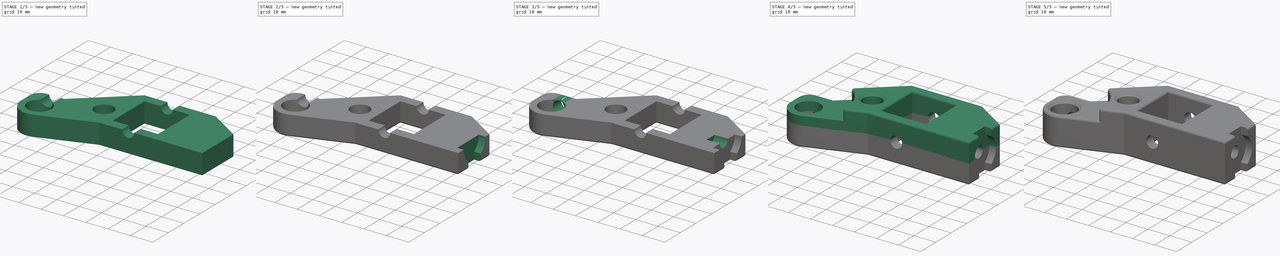
[diagram: build sequence overview — one tinted view per stage of 5, left to right]
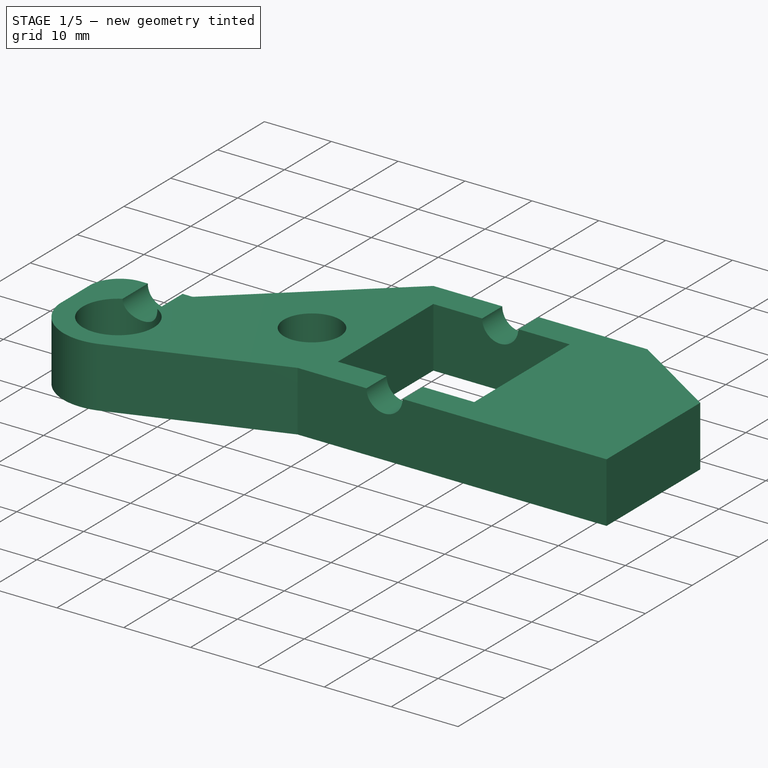
[diagram: stage 1 of 5 — iso view after this stage's code; geometry added in this stage tinted green]
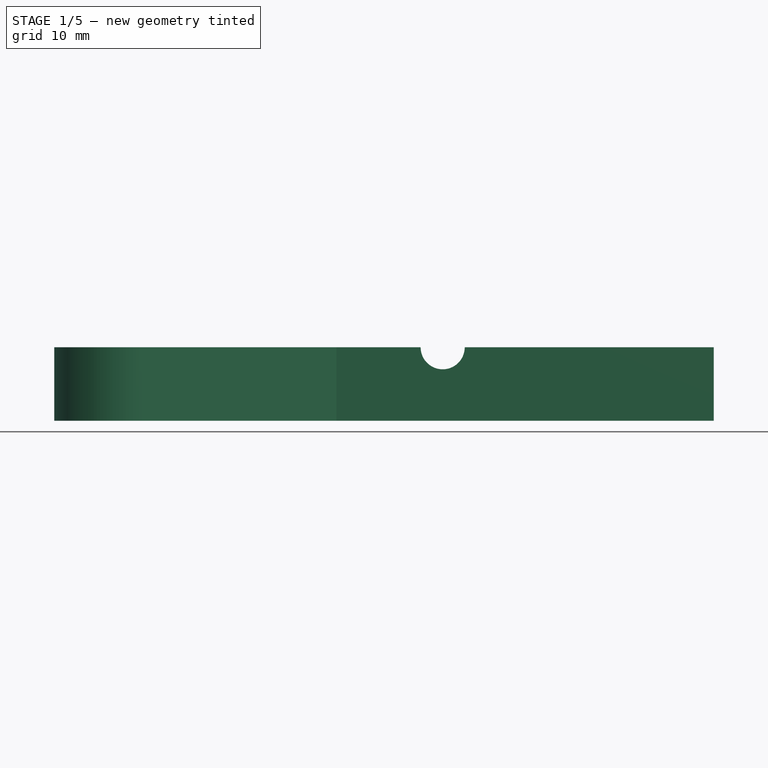
[diagram: stage 1 of 5 — front view after this stage's code; geometry added in this stage tinted green]
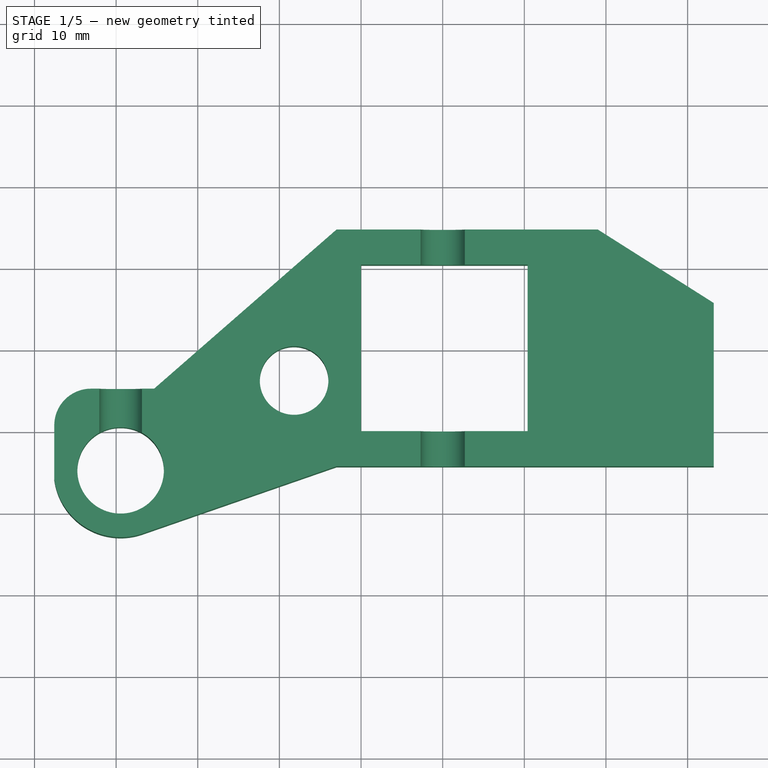
[diagram: stage 1 of 5 — top view after this stage's code; geometry added in this stage tinted green]
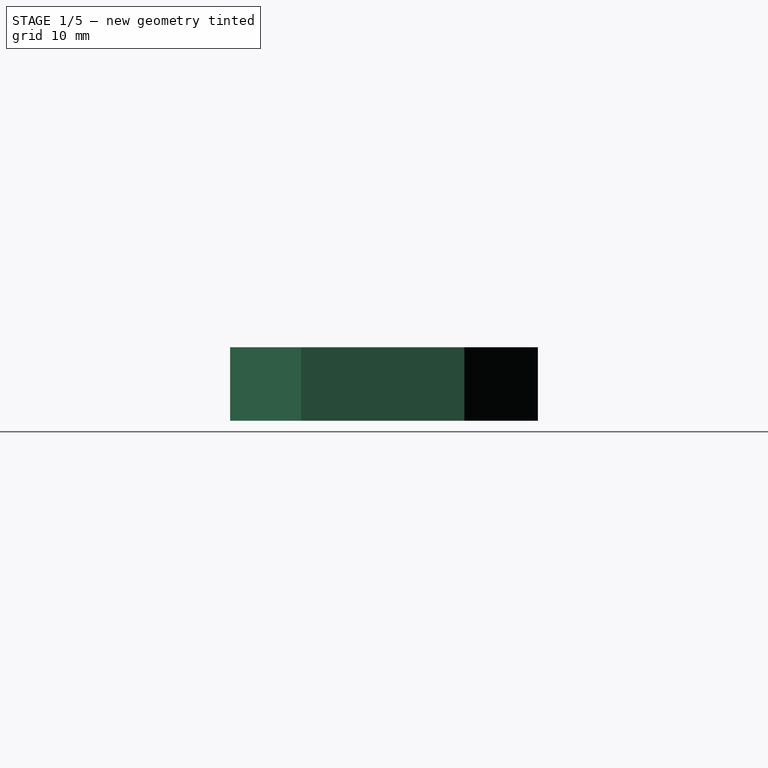
[diagram: stage 1 of 5 — right view after this stage's code; geometry added in this stage tinted green]
FCSTD DOCUMENT  (FreeCAD 0.16R6747 (Git))
Label: y_corner_v2.4
License: All rights reserved
LicenseURL: http://en.wikipedia.org/wiki/All_rights_reserved
objects: Drawing::FeatureViewPython×21, Sketcher::SketchObject×11, PartDesign::Pocket×8, PartDesign::Fillet×5, Drawing::FeatureViewPart×5, PartDesign::Pad×3, PartDesign::Chamfer×2, Part::Mirroring×1, Part::Feature×1, Part::MultiFuse×1, Drawing::FeaturePage×1
note: 43 computed .brp shape members not serialized (recipe doc carries the construction recipe); baked Part::Feature solids carry a one-line shape summary decoded from their .brp

FEATURE [Sketcher::SketchObject] Sketch
  sketch-geometry (21):
    g0: Circle CenterX=-8.2 CenterY=6.2 CenterZ=0 NormalX=0 NormalY=0 NormalZ=1 Radius=4.2
    g1: LineSegment StartX=0 StartY=20.4 StartZ=0 EndX=20.4 EndY=20.4 EndZ=0
    g2: LineSegment StartX=20.4 StartY=20.4 StartZ=0 EndX=20.4 EndY=0 EndZ=0
    g3: LineSegment StartX=20.4 StartY=0 StartZ=0 EndX=0 EndY=0 EndZ=0
    g4: LineSegment StartX=0 StartY=0 StartZ=0 EndX=0 EndY=20.4 EndZ=0
    g5: Circle CenterX=-29.45 CenterY=-4.8 CenterZ=0 NormalX=0 NormalY=0 NormalZ=1 Radius=5.3
    g6: LineSegment [constr] StartX=10.2 StartY=20.4 StartZ=0 EndX=10.2 EndY=0 EndZ=0
    g7: LineSegment [constr] StartX=0 StartY=10.2 StartZ=0 EndX=20.4 EndY=10.2 EndZ=0
    g8: LineSegment StartX=-3 StartY=24.7 StartZ=0 EndX=29 EndY=24.7 EndZ=0
    g9: LineSegment StartX=29 StartY=24.7 StartZ=0 EndX=43.2 EndY=15.7 EndZ=0
    g10: LineSegment StartX=43.2 StartY=15.7 StartZ=0 EndX=43.2 EndY=-4.3 EndZ=0
    g11: LineSegment StartX=43.2 StartY=-4.3 StartZ=0 EndX=-3 EndY=-4.3 EndZ=0
    g12: LineSegment StartX=-3 StartY=-4.3 StartZ=0 EndX=-26.8518 EndY=-12.5775 EndZ=0
    g13: LineSegment StartX=-3 StartY=24.7 StartZ=0 EndX=-25.35 EndY=5.2 EndZ=0
    g14: ArcOfCircle CenterX=-29.45 CenterY=-4.8 CenterZ=0 NormalX=0 NormalY=0 NormalZ=1 Radius=8.2 StartAngle=3.2757 EndAngle=5.03479
    g15: LineSegment [constr] StartX=0 StartY=44.345 StartZ=0 EndX=0 EndY=-16.0399 EndZ=0
    g16: LineSegment StartX=-37.5764 StartY=0.705065 StartZ=0 EndX=-37.5764 EndY=-5.89639 EndZ=0
    g17: LineSegment [constr] StartX=-29.45 StartY=18.3299 StartZ=0 EndX=-29.45 EndY=-20.2396 EndZ=0
    g18: LineSegment [constr] StartX=-42.4211 StartY=-4.8 StartZ=0 EndX=-17.1024 EndY=-4.8 EndZ=0
    g19: LineSegment StartX=-33.0814 StartY=5.2 StartZ=0 EndX=-25.35 EndY=5.2 EndZ=0
    g20: ArcOfCircle CenterX=-33.0814 CenterY=0.705065 CenterZ=0 NormalX=0 NormalY=0 NormalZ=1 Radius=4.49494 StartAngle=1.5708 EndAngle=3.14159
  constraints (56):
    c: Coincident(g1,g2)
    c: Coincident(g2,g3)
    c: Coincident(g3,g4)
    c: Coincident(g4,g1)
    c: Horizontal(g1)
    c: Horizontal(g3)
    c: Vertical(g2)
    c: Vertical(g4)
    c: DistanceX(g2,g3) = -20.4
    c: DistanceY(g2,g1) = 20.4
    c: Radius(g0) = 4.2
    c: Radius(g5) = 5.3
    c: PointOnObject(g6,g1)
    c: Vertical(g6)
    c: PointOnObject(g6,g3)
    c: DistanceX(g3,g6) = 10.2
    c: DistanceX(g0,g6) = 18.4
    c: PointOnObject(g7,g4)
    c: PointOnObject(g7,g2)
    c: Horizontal(g7)
    c: DistanceY(g3,g7) = 10.2
    c: DistanceY(g0,g7) = 4
    c: Coincident(g-1,g3)
    c: Horizontal(g8)
    c: Coincident(g8,g9)
    c: Coincident(g9,g10)
    c: Vertical(g10)
    c: Coincident(g10,g11)
    c: Horizontal(g11)
    c: Coincident(g11,g12)
    c: Coincident(g14,g5)
    c: Radius(g14) = 8.2
    c: DistanceX(g6,g10) = 33
    c: DistanceY(g-1,g11) = -4.3
    c: PointOnObject(g15,g-2)
    c: Vertical(g15)
    c: Coincident(g13,g8)
    c: DistanceY(g1,g8) = 4.3
    c: DistanceX(g-1,g11) = -3
    c: DistanceX(g1,g8) = -3
    c: DistanceY(g10) = -20
    c: DistanceX(g8) = 32
    c: Coincident(g14,g12)
    c: Vertical(g16)
    c: Vertical(g17)
    c: Horizontal(g18)
    c: PointOnObject(g5,g18)
    c: PointOnObject(g5,g17)
    c: Horizontal(g19)
    c: Coincident(g19,g13)
    c: Coincident(g16,g14)
    c: Tangent(g19,g20) = 1.5708
    c: Tangent(g16,g20) = -1.5708
    c: DistanceY(g5,g7) = 15
    c: DistanceX(g5,g6) = 39.65
    c: DistanceY(g5,g19) = 10
FEATURE [PartDesign::Pad] Pad
  Length = 9
  Length2 = 100
  Sketch = -> Sketch
  Type = 0
FEATURE [Sketcher::SketchObject] Sketch017
  Placement = pos=(0,5.2,0) rot=(0,0.707107,0.707107;3.14159rad)
  Support = -> Pad [Face9]
  sketch-geometry (1):
    g0: Circle CenterX=29.45 CenterY=9 CenterZ=0 NormalX=0 NormalY=0 NormalZ=1 Radius=2.6
  constraints (3):
    c: Radius(g0) = 2.6
    c: DistanceX(g-1,g0) = 29.45
    c: DistanceY(g-1,g0) = 9
FEATURE [PartDesign::Pocket] Pocket
  Length = 7
  Sketch = -> Sketch017
  Type = 0
FEATURE [Sketcher::SketchObject] Sketch018
  Placement = pos=(0,-4.3,0) rot=(1,0,0;1.5708rad)
  Support = -> Pocket [Face8]
  sketch-geometry (1):
    g0: Circle CenterX=10 CenterY=9 CenterZ=0 NormalX=0 NormalY=0 NormalZ=1 Radius=2.7
  constraints (3):
    c: Radius(g0) = 2.7
    c: DistanceX(g-1,g0) = 10
    c: DistanceY(g-1,g0) = 9
FEATURE [PartDesign::Pocket] Pocket001
  Length = 5
  Sketch = -> Sketch018
  Type = 1
FEATURE [PartDesign::Chamfer] Chamfer
  Base = -> Pocket001 [Edge21]
  Size = 1
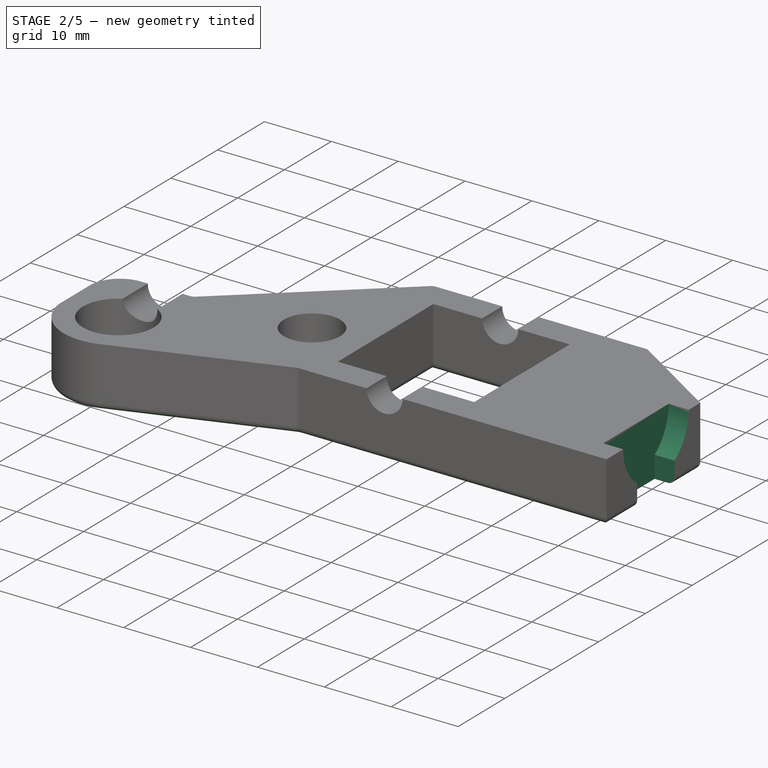
[diagram: stage 2 of 5 — iso view after this stage's code; geometry added in this stage tinted green]
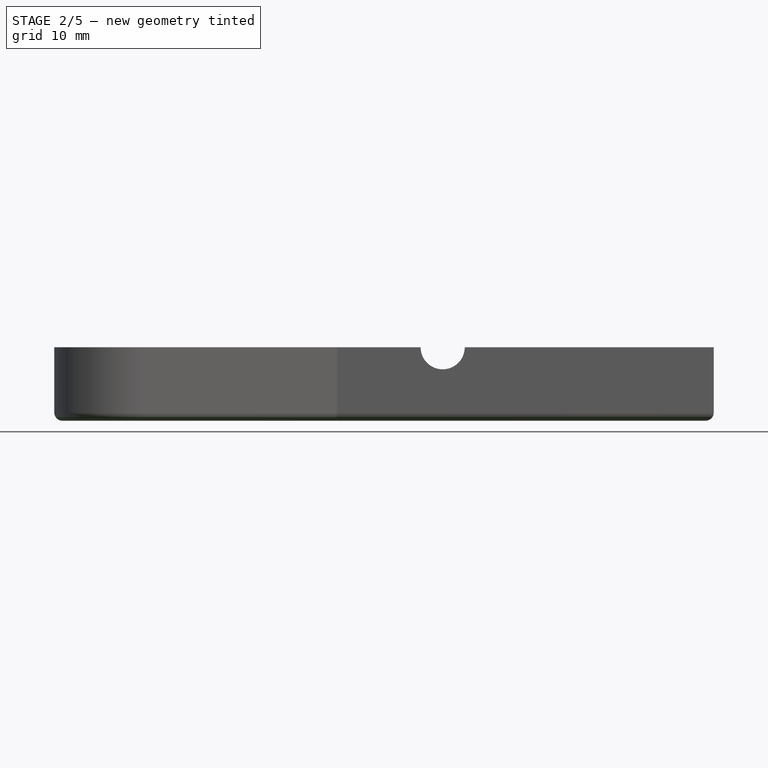
[diagram: stage 2 of 5 — front view after this stage's code; geometry added in this stage tinted green]
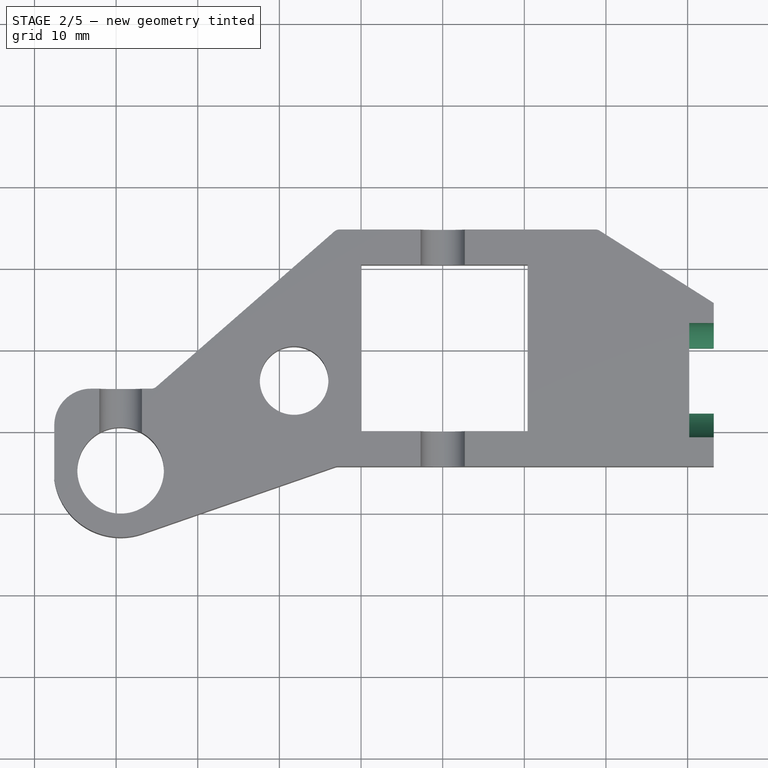
[diagram: stage 2 of 5 — top view after this stage's code; geometry added in this stage tinted green]
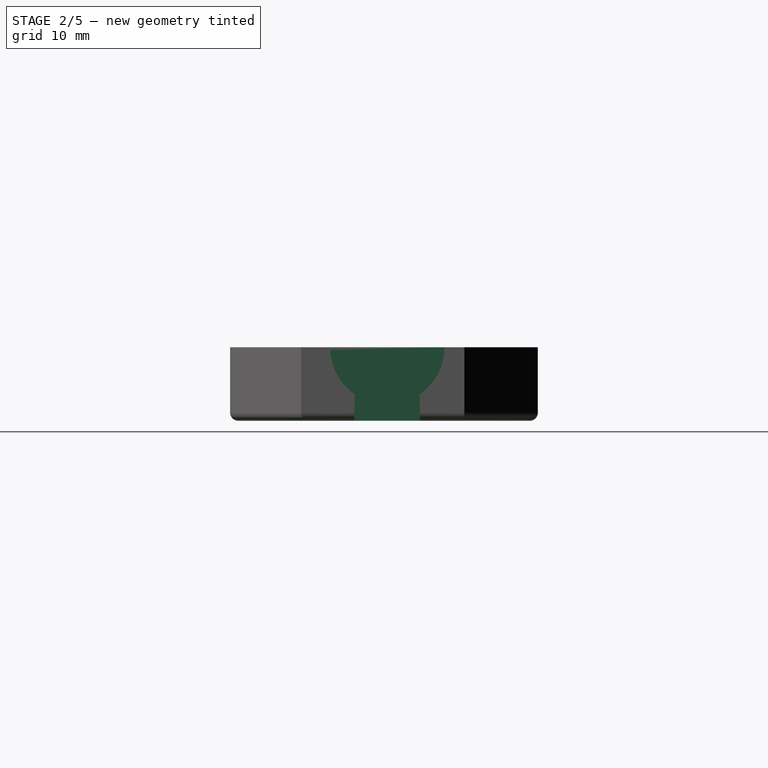
[diagram: stage 2 of 5 — right view after this stage's code; geometry added in this stage tinted green]
FEATURE [PartDesign::Fillet] Fillet
  Base = -> Chamfer [Edge15,Edge14,Edge13,Edge12]
  Radius = 1
FEATURE [PartDesign::Fillet] Fillet001
  Base = -> Fillet [Edge48,Edge31,Edge27,Edge36]
  Radius = 1
FEATURE [PartDesign::Fillet] Fillet002
  Base = -> Fillet001 [Edge5,Edge4,Edge12,Edge14,Edge9,Edge7]
  Radius = 1
FEATURE [Sketcher::SketchObject] Sketch019
  Placement = pos=(43.2,0,0) rot=(0.57735,0.57735,0.57735;2.0944rad)
  Support = -> Fillet002 [Face31]
  sketch-geometry (9):
    g0: LineSegment [constr] StartX=6.2 StartY=22.4432 StartZ=0 EndX=6.2 EndY=14.5 EndZ=0
    g1: ArcOfCircle CenterX=6.24799 CenterY=9 CenterZ=0 NormalX=0 NormalY=0 NormalZ=1 Radius=7 StartAngle=2.17904 EndAngle=4.10414
    g2: LineSegment StartX=2.24799 StartY=19 StartZ=0 EndX=2.24799 EndY=14.7446 EndZ=0
    g3: LineSegment StartX=10.248 StartY=3.25544 StartZ=0 EndX=10.248 EndY=-1 EndZ=0
    g4: LineSegment StartX=2.24799 StartY=19 StartZ=0 EndX=10.248 EndY=19 EndZ=0
    g5: LineSegment StartX=2.2 StartY=-1 StartZ=0 EndX=10.248 EndY=-1 EndZ=0
    g6: ArcOfCircle CenterX=6.24799 CenterY=9 CenterZ=0 NormalX=0 NormalY=0 NormalZ=1 Radius=7 StartAngle=5.32063 EndAngle=7.24574
    g7: LineSegment StartX=2.24799 StartY=3.25544 StartZ=0 EndX=2.2 EndY=-1 EndZ=0
    g8: LineSegment StartX=10.248 StartY=14.7446 StartZ=0 EndX=10.248 EndY=19 EndZ=0
  constraints (27):
    c: Vertical(g0)
    c: Radius(g1) = 7
    c: Vertical(g3)
    c: Vertical(g2)
    c: Coincident(g2,g4)
    c: Horizontal(g4)
    c: Coincident(g3,g5)
    c: Coincident(g7,g5)
    c: Horizontal(g5)
    c: DistanceX(g4,g1) = -4
    c: DistanceX(g1,g2) = -4
    c: Coincident(g6,g3)
    c: PointOnObject(g1,g2)
    c: Equal(g1,g6)
    c: PointOnObject(g1,g2)
    c: Coincident(g6,g3)
    c: Coincident(g1,g6)
    c: Coincident(g1,g7)
    c: Coincident(g1,g2)
    c: Vertical(g8)
    c: Coincident(g4,g8)
    c: Coincident(g6,g8)
    c: DistanceX(g1,g3) = 4
    c: DistanceY(g4,g1) = -10
    c: DistanceY(g3,g1) = 10
    c: DistanceY(g-1,g1) = 9
    c: DistanceX(g-1,g1) = 6.24799
FEATURE [PartDesign::Pocket] Pocket002
  Length = 3
  Sketch = -> Sketch019
  Type = 0
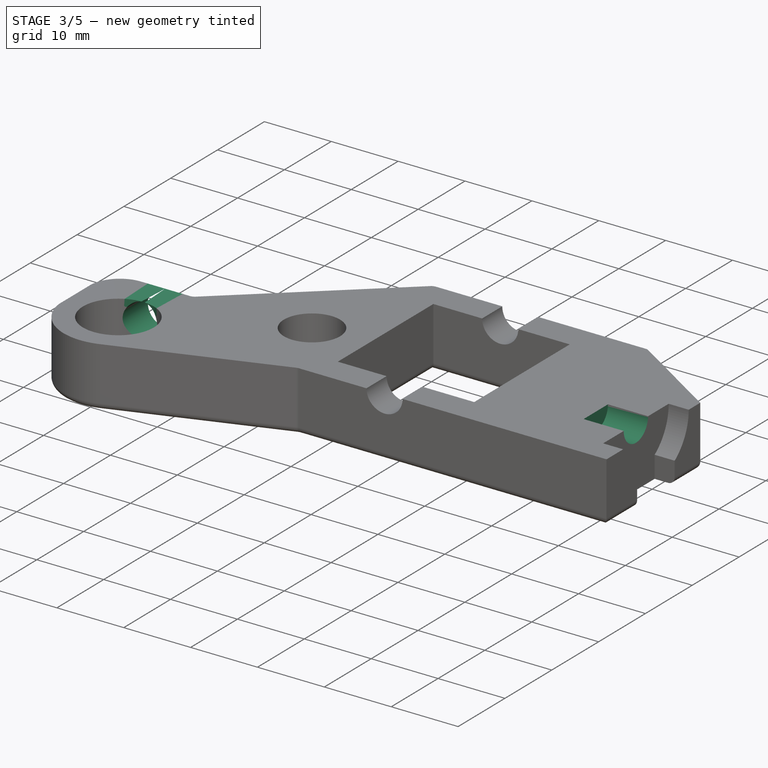
[diagram: stage 3 of 5 — iso view after this stage's code; geometry added in this stage tinted green]
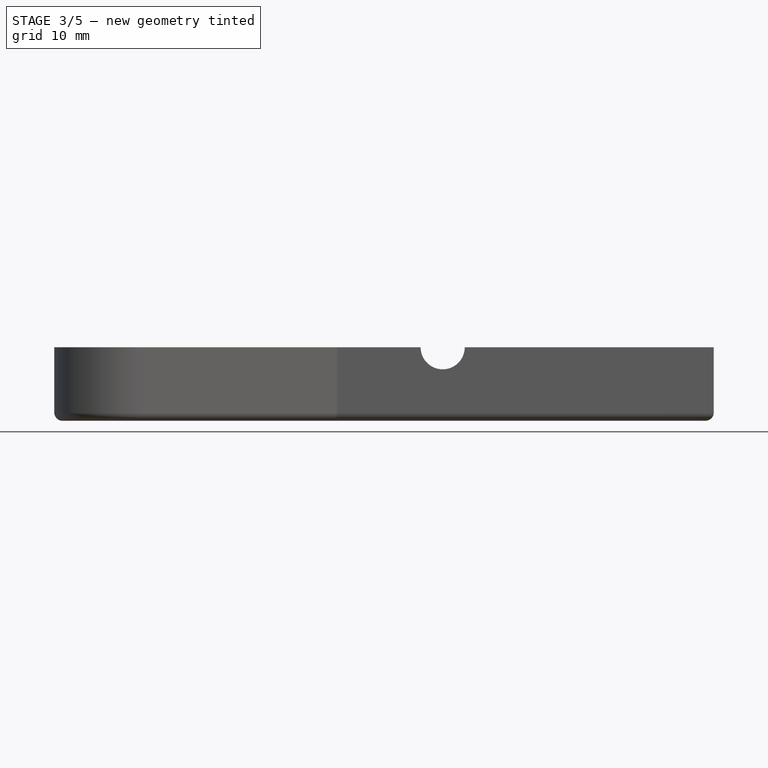
[diagram: stage 3 of 5 — front view after this stage's code; geometry added in this stage tinted green]
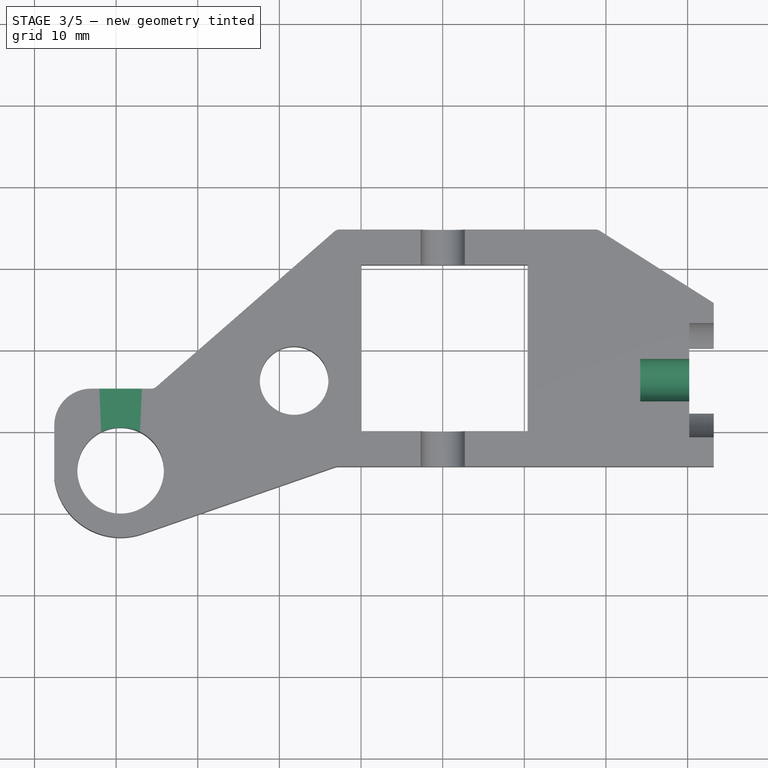
[diagram: stage 3 of 5 — top view after this stage's code; geometry added in this stage tinted green]
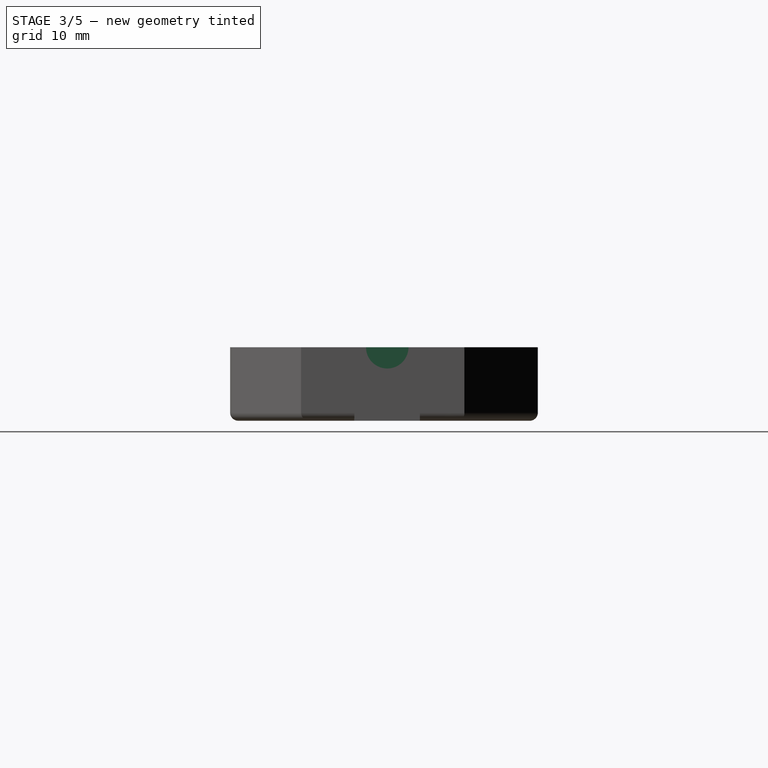
[diagram: stage 3 of 5 — right view after this stage's code; geometry added in this stage tinted green]
FEATURE [Sketcher::SketchObject] Sketch020
  ExternalGeometry = -> [Pocket002]
  Placement = pos=(40.2,0,0) rot=(0.57735,0.57735,0.57735;2.0944rad)
  Support = -> Pocket002 [Face11]
  sketch-geometry (1):
    g0: Circle CenterX=6.24799 CenterY=9 CenterZ=0 NormalX=0 NormalY=0 NormalZ=1 Radius=2.6
  constraints (2):
    c: Radius(g0) = 2.6
    c: Coincident(g0,g-3)
FEATURE [PartDesign::Pocket] Pocket003
  Length = 6
  Sketch = -> Sketch020
  Type = 0
FEATURE [Sketcher::SketchObject] Sketch022
  ExternalGeometry = -> [Pocket003]
  Placement = pos=(0,5.2,0) rot=(0,0.707107,0.707107;3.14159rad)
  Support = -> Pocket003 [Face27]
  sketch-geometry (2):
    g0: ArcOfCircle CenterX=29.45 CenterY=9 CenterZ=0 NormalX=0 NormalY=0 NormalZ=1 Radius=2.6 StartAngle=3.14159 EndAngle=6.28319
    g1: LineSegment StartX=26.85 StartY=9 StartZ=0 EndX=32.05 EndY=9 EndZ=0
  constraints (5):
    c: Coincident(g0,g-3)
    c: Coincident(g0,g-3)
    c: Coincident(g0,g-3)
    c: Coincident(g1,g0)
    c: Coincident(g1,g0)
FEATURE [PartDesign::Pad] Pad001
  Length = 10
  Length2 = 100
  Reversed = true
  Sketch = -> Sketch022
  Type = 0
FEATURE [Sketcher::SketchObject] Sketch025
  ExternalGeometry = -> [Pad001]
  Placement = pos=(0,0,0) rot=(1,0,0;3.14159rad)
  Support = -> Pad001 [Face1]
  sketch-geometry (1):
    g0: Circle CenterX=-29.45 CenterY=4.8 CenterZ=0 NormalX=0 NormalY=0 NormalZ=1 Radius=5.3
  constraints (2):
    c: Coincident(g0,g-3)
    c: Equal(g-3,g0)
FEATURE [PartDesign::Pocket] Pocket006
  Length = 5
  Sketch = -> Sketch025
  Type = 1
FEATURE [Sketcher::SketchObject] Sketch026
  ExternalGeometry = -> [Pocket006]
  Placement = pos=(0,5.2,0) rot=(0,0.707107,0.707107;3.14159rad)
  Support = -> Pocket006 [Face29]
  sketch-geometry (2):
    g0: Circle CenterX=29.45 CenterY=6.4 CenterZ=0 NormalX=0 NormalY=0 NormalZ=1 Radius=2.6
    g1: LineSegment [constr] StartX=29.45 StartY=6.4 StartZ=0 EndX=29.45 EndY=9 EndZ=0
  constraints (5):
    c: PointOnObject(g-3,g0)
    c: Equal(g-3,g0)
    c: Coincident(g1,g0)
    c: Coincident(g1,g-3)
    c: Vertical(g1)
FEATURE [PartDesign::Pocket] Pocket007
  Length = 10
  Sketch = -> Sketch026
  Type = 0
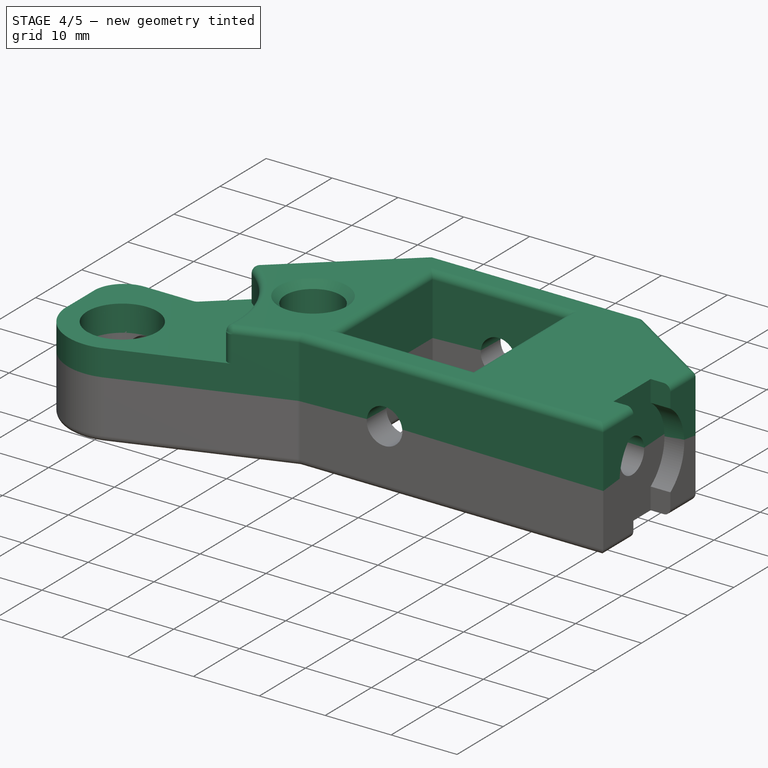
[diagram: stage 4 of 5 — iso view after this stage's code; geometry added in this stage tinted green]
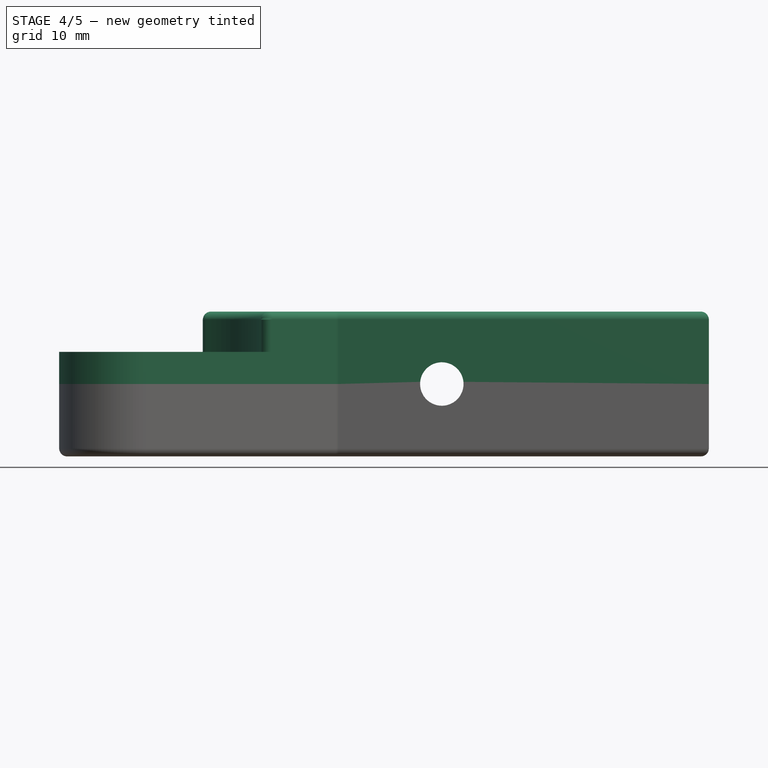
[diagram: stage 4 of 5 — front view after this stage's code; geometry added in this stage tinted green]
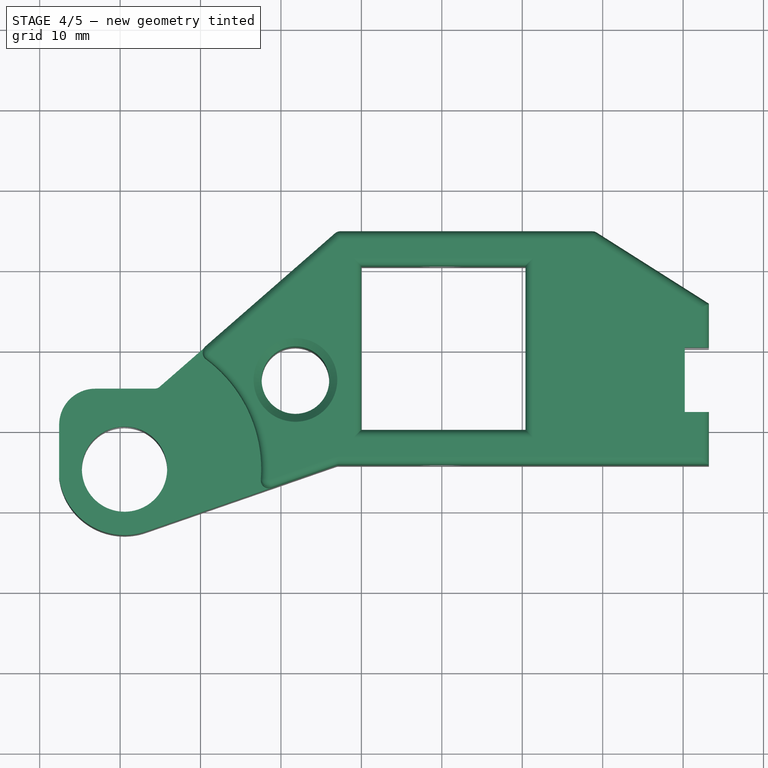
[diagram: stage 4 of 5 — top view after this stage's code; geometry added in this stage tinted green]
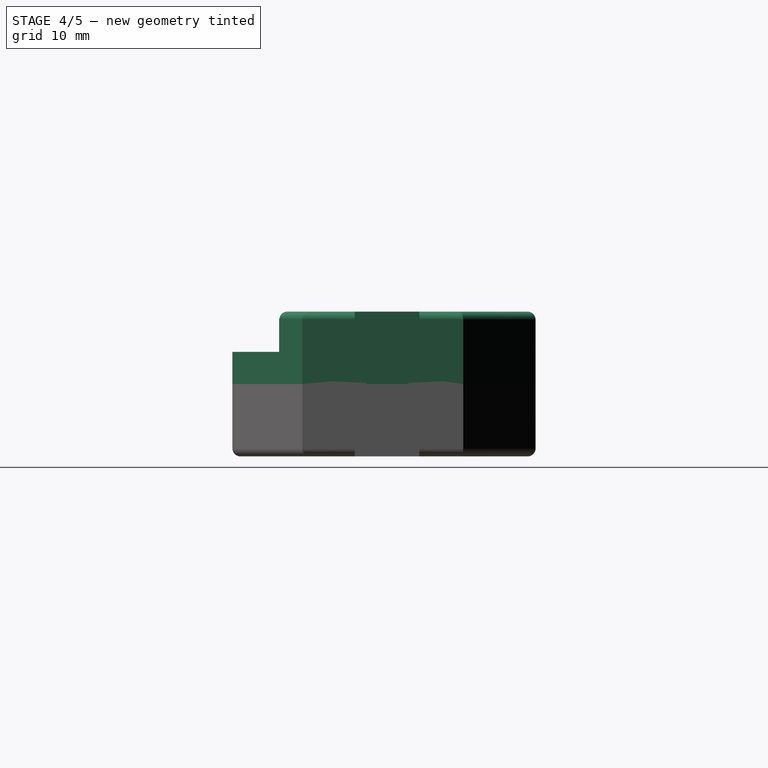
[diagram: stage 4 of 5 — right view after this stage's code; geometry added in this stage tinted green]
FEATURE [Part::Mirroring] Part__Mirroring  label="Pocket003 (Mirror #1)"
  Base = (0,0,9)
  Normal = (0,0,1)
  Source = -> Pocket003
FEATURE [Sketcher::SketchObject] Sketch021
  ExternalGeometry = -> [Part__Mirroring]
  Placement = pos=(0,0,18) rot=(0,0,1;0rad)
  Support = -> Part__Mirroring [Face1]
  sketch-geometry (1):
    g0: Circle CenterX=-29.45 CenterY=-4.8 CenterZ=0 NormalX=0 NormalY=0 NormalZ=1 Radius=17
  constraints (2):
    c: Coincident(g0,g-4)
    c: Radius(g0) = 17
FEATURE [PartDesign::Pocket] Pocket004
  Length = 5
  Sketch = -> Sketch021
  Type = 0
FEATURE [PartDesign::Fillet] Fillet003
  Base = -> Pocket004 [Edge2]
  Radius = 1
FEATURE [Part::Feature] Chamfer001001  label="Chamfer002"
  shape: bbox 81.45 x 38.3 x 9.006 mm, 65 faces (baked)
FEATURE [Part::MultiFuse] Fusion
  Shapes = -> [Pocket007,Chamfer001001]
FEATURE [Drawing::FeatureViewPart] Ortho  label="Ortho_0_0"
  Direction = (0,0,-1)
  HiddenWidth = 0.15
  LineWidth = 0.35
  Rotation = -90
  Scale = 1.5
  ShowHiddenLines = false
  ShowSmoothLines = true
  Source = -> Fusion
  Tolerance = 0.05
  ViewResult = <blob: 11219 chars omitted>
  Visible = true
  X = 183.026
  Y = 144.282
FEATURE [Drawing::FeatureViewPart] Ortho001  label="Ortho_-1_0"
  Direction = (0,1,0)
  HiddenWidth = 0.15
  LineWidth = 0.35
  Rotation = 180
  Scale = 1.5
  ShowHiddenLines = false
  ShowSmoothLines = true
  Source = -> Fusion
  Tolerance = 0.05
  ViewResult = <blob: 15483 chars omitted>
  Visible = true
  X = 128.5
  Y = 144.282
FEATURE [Drawing::FeatureViewPart] Ortho002  label="Ortho_-2_0"
  Direction = (0,0,1)
  HiddenWidth = 0.15
  LineWidth = 0.35
  Rotation = 90
  Scale = 1.5
  ShowHiddenLines = false
  ShowSmoothLines = true
  Source = -> Fusion
  Tolerance = 0.05
  ViewResult = <blob: 14001 chars omitted>
  Visible = true
  X = 46.9742
  Y = 144.282
FEATURE [Drawing::FeatureViewPart] Ortho003  label="Ortho_0_1"
  Direction = (-1,0,0)
  HiddenWidth = 0.15
  LineWidth = 0.35
  Rotation = 90
  Scale = 1.5
  ShowHiddenLines = false
  ShowSmoothLines = true
  Source = -> Fusion
  Tolerance = 0.05
  ViewResult = <blob: 12785 chars omitted>
  Visible = true
  X = 183.026
  Y = 62.4589
FEATURE [Drawing::FeatureViewPart] Ortho004  label="Ortho_0_-1"
  Direction = (1,0,0)
  HiddenWidth = 0.15
  LineWidth = 0.35
  Rotation = 90
  Scale = 1.5
  ShowHiddenLines = false
  ShowSmoothLines = true
  Source = -> Fusion
  Tolerance = 0.05
  ViewResult = <blob: 11157 chars omitted>
  Visible = true
  X = 183.026
  Y = 234.541
FEATURE [Drawing::FeatureViewPython] text002  # drawing view (typed FeaturePython)
  Rotation = 0
  ViewResult = <g> <text x="83.528981" y="79.427111" font-family="inherit" font-size="5" fill="rgb(0,0,0)" text-anchor="inherit" transform="rotate(0.000000 83.528981,79.427111)" >'A'</text> </g>
  Visible = true
  X = 0
  Y = 0
  click1_x = 83.529
  click1_y = 79.4271
  rotation = 0
  text = 'A'
  textRenderer_addText_color = rgb(0,0,0)
  textRenderer_addText_family = inherit
  textRenderer_addText_size = 5
FEATURE [Drawing::FeatureViewPython] text003  # drawing view (typed FeaturePython)
  Rotation = 0
  ViewResult = <g> <text x="149.904688" y="100.309356" font-family="inherit" font-size="5" fill="rgb(0,0,0)" text-anchor="inherit" transform="rotate(0.000000 149.904688,100.309356)" >'A'</text> </g>
  Visible = true
  X = 0
  Y = 0
  click1_x = 149.905
  click1_y = 100.309
  rotation = 0
  text = 'A'
  textRenderer_addText_color = rgb(0,0,0)
  textRenderer_addText_family = inherit
  textRenderer_addText_size = 5
FEATURE [Drawing::FeatureViewPython] text004  # drawing view (typed FeaturePython)
  Rotation = 0
  ViewResult = <g> <text x="187.940206" y="222.619649" font-family="inherit" font-size="5" fill="rgb(0,0,0)" text-anchor="inherit" transform="rotate(0.000000 187.940206,222.619649)" >'D'</text> </g>
  Visible = true
  X = 0
  Y = 0
  click1_x = 187.94
  click1_y = 222.62
  rotation = 0
  text = 'D'
  textRenderer_addText_color = rgb(0,0,0)
  textRenderer_addText_family = inherit
  textRenderer_addText_size = 5
FEATURE [Drawing::FeatureViewPython] text005  # drawing view (typed FeaturePython)
  Rotation = 0
  ViewResult = <g> <text x="142.073846" y="224.484135" font-family="inherit" font-size="5" fill="rgb(0,0,0)" text-anchor="inherit" transform="rotate(0.000000 142.073846,224.484135)" >'C'</text> </g>
  Visible = true
  X = 0
  Y = 0
  click1_x = 142.074
  click1_y = 224.484
  rotation = 0
  text = 'C'
  textRenderer_addText_color = rgb(0,0,0)
  textRenderer_addText_family = inherit
  textRenderer_addText_size = 5
FEATURE [Drawing::FeatureViewPython] text006  # drawing view (typed FeaturePython)
  Rotation = 0
  ViewResult = <g> <text x="196.889740" y="76.071036" font-family="inherit" font-size="5" fill="rgb(0,0,0)" text-anchor="inherit" transform="rotate(0.000000 196.889740,76.071036)" >'A'</text> </g>
  Visible = true
  X = 0
  Y = 0
  click1_x = 196.89
  click1_y = 76.071
  rotation = 0
  text = 'A'
  textRenderer_addText_color = rgb(0,0,0)
  textRenderer_addText_family = inherit
  textRenderer_addText_size = 5
FEATURE [Drawing::FeatureViewPython] grabPoint001  # drawing view (typed FeaturePython)
  Rotation = 0
  ViewResult = <g> <line x1="48.8495377348" y1="114.106553793" x2="48.8495377348" y2="114.106553793" style="stroke:rgb(0,0,0);stroke-width:0.01" /> </g> 
  Visible = true
  X = 0
  Y = 0
  click1_x = 48.8495
  click1_y = 114.107
FEATURE [Drawing::FeatureViewPython] grabPoint002  # drawing view (typed FeaturePython)
  Rotation = 0
  ViewResult = <g> <line x1="66.7486049964" y1="136.107490635" x2="66.7486049964" y2="136.107490635" style="stroke:rgb(0,0,0);stroke-width:0.01" /> </g> 
  Visible = true
  X = 0
  Y = 0
  click1_x = 66.7486
  click1_y = 136.107
FEATURE [Drawing::FeatureViewPython] grabPoint003  # drawing view (typed FeaturePython)
  Rotation = 0
  ViewResult = <g> <line x1="110.377581447" y1="122.683190189" x2="110.377581447" y2="122.683190189" style="stroke:rgb(0,0,0);stroke-width:0.01" /> </g> 
  Visible = true
  X = 0
  Y = 0
  click1_x = 110.378
  click1_y = 122.683
FEATURE [Drawing::FeatureViewPython] grabPoint004  # drawing view (typed FeaturePython)
  Rotation = 0
  ViewResult = <g> <line x1="163.701885997" y1="54.0700990194" x2="163.701885997" y2="54.0700990194" style="stroke:rgb(0,0,0);stroke-width:0.01" /> </g> 
  Visible = true
  X = 0
  Y = 0
  click1_x = 163.702
  click1_y = 54.0701
FEATURE [Drawing::FeatureViewPython] grabPoint005  # drawing view (typed FeaturePython)
  Rotation = 0
  ViewResult = <g> <line x1="181.228056024" y1="118.208423374" x2="181.228056024" y2="118.208423374" style="stroke:rgb(0,0,0);stroke-width:0.01" /> </g> 
  Visible = true
  X = 0
  Y = 0
  click1_x = 181.228
  click1_y = 118.208
FEATURE [Drawing::FeatureViewPython] grabPoint006  # drawing view (typed FeaturePython)
  Rotation = 0
  ViewResult = <g> <line x1="152.142071724" y1="243.12899697" x2="152.142071724" y2="243.12899697" style="stroke:rgb(0,0,0);stroke-width:0.01" /> </g> 
  Visible = true
  X = 0
  Y = 0
  click1_x = 152.142
  click1_y = 243.129
FEATURE [Drawing::FeatureViewPython] grabPoint007  # drawing view (typed FeaturePython)
  Rotation = 0
  ViewResult = <g> <line x1="173.770111331" y1="238.654230155" x2="173.770111331" y2="238.654230155" style="stroke:rgb(0,0,0);stroke-width:0.01" /> </g> 
  Visible = true
  X = 0
  Y = 0
  click1_x = 173.77
  click1_y = 238.654
FEATURE [Drawing::FeatureViewPython] weld001  # drawing view (typed FeaturePython)
  Rotation = 0
  ViewResult = <g   >\n<line x1="184.305800" y1="223.851934" x2="173.770111" y2="238.654230" style="stroke:rgb(0,0,255);stroke-width:0.50" />\n<polygon points="173.770111,238.654230 176.324442,236.789989 176.089612,235.395408 174.695031,235.630239" style="fill:rgb(0,0,255);stroke:rgb(0,0,255);stroke-width:0" />\n<line x1="184.305800" y1="223.851934" x2="198.771359" y2="223.851934" style="stroke:rgb(0,0,255);stroke-width:0.50" />\n</g> 
  Visible = true
  X = 0
  Y = 0
  arrowL1 = 3
  arrowL2 = 1
  arrowW = 2
  click1_x = 184.306
  click1_y = 223.852
  click2_x = 198.771
  click2_y = 223.956
  lineColor = rgb(0,0,255)
  strokeWidth = 0.5
  textRenderer_color = rgb(0,0,255)
  textRenderer_family = inherit
  textRenderer_size = 3.6
FEATURE [Drawing::FeatureViewPython] weld002  # drawing view (typed FeaturePython)
  Rotation = 0
  ViewResult = <g   >\n<line x1="150.483448" y1="226.245516" x2="152.142072" y2="243.128997" style="stroke:rgb(0,0,255);stroke-width:0.50" />\n<polygon points="152.142072,243.128997 152.843974,240.045601 151.750997,239.148160 150.853556,240.241138" style="fill:rgb(0,0,255);stroke:rgb(0,0,255);stroke-width:0" />\n<line x1="150.483448" y1="226.245516" x2="139.972502" y2="226.245516" style="stroke:rgb(0,0,255);stroke-width:0.50" />\n</g> 
  Visible = true
  X = 0
  Y = 0
  arrowL1 = 3
  arrowL2 = 1
  arrowW = 2
  click1_x = 150.483
  click1_y = 226.246
  click2_x = 139.973
  click2_y = 223.956
  lineColor = rgb(0,0,255)
  strokeWidth = 0.5
  textRenderer_color = rgb(0,0,255)
  textRenderer_family = inherit
  textRenderer_size = 3.6
FEATURE [Drawing::FeatureViewPython] weld003  # drawing view (typed FeaturePython)
  Rotation = 0
  ViewResult = <g   >\n<line x1="66.379374" y1="100.420078" x2="48.849538" y2="114.106554" style="stroke:rgb(0,0,255);stroke-width:0.50" />\n<polygon points="48.849538,114.106554 51.829582,113.048566 52.002395,111.644950 50.598780,111.472137" style="fill:rgb(0,0,255);stroke:rgb(0,0,255);stroke-width:0" />\n<line x1="66.379374" y1="100.420078" x2="78.974434" y2="100.420078" style="stroke:rgb(0,0,255);stroke-width:0.50" />\n</g> 
  Visible = true
  X = 0
  Y = 0
  arrowL1 = 3
  arrowL2 = 1
  arrowW = 2
  click1_x = 66.3794
  click1_y = 100.42
  click2_x = 78.9744
  click2_y = 100.42
  lineColor = rgb(0,0,255)
  strokeWidth = 0.5
  textRenderer_color = rgb(0,0,255)
  textRenderer_family = inherit
  textRenderer_size = 3.6
FEATURE [Drawing::FeatureViewPython] weld004  # drawing view (typed FeaturePython)
  Rotation = 0
  ViewResult = <g   >\n<line x1="66.038967" y1="100.420078" x2="66.748605" y2="136.107491" style="stroke:rgb(0,0,255);stroke-width:0.50" />\n<polygon points="66.748605,136.107491 67.688765,133.088203 66.669081,132.108281 65.689160,133.127964" style="fill:rgb(0,0,255);stroke:rgb(0,0,255);stroke-width:0" />\n<line x1="66.038967" y1="100.420078" x2="66.719781" y2="100.420078" style="stroke:rgb(0,0,255);stroke-width:0.50" />\n</g> 
  Visible = true
  X = 0
  Y = 0
  arrowL1 = 3
  arrowL2 = 1
  arrowW = 2
  click1_x = 66.039
  click1_y = 100.42
  click2_x = 66.7198
  click2_y = 99.7393
  lineColor = rgb(0,0,255)
  strokeWidth = 0.5
  textRenderer_color = rgb(0,0,255)
  textRenderer_family = inherit
  textRenderer_size = 3.6
FEATURE [Drawing::FeatureViewPython] weld005  # drawing view (typed FeaturePython)
  Rotation = 0
  ViewResult = <g   >\n<line x1="94.530152" y1="81.397164" x2="110.377581" y2="122.683190" style="stroke:rgb(0,0,255);stroke-width:0.50" />\n<polygon points="110.377581,122.683190 110.236111,119.524079 108.944172,118.948845 108.368938,120.240783" style="fill:rgb(0,0,255);stroke:rgb(0,0,255);stroke-width:0" />\n<line x1="94.530152" y1="81.397164" x2="78.661125" y2="81.397164" style="stroke:rgb(0,0,255);stroke-width:0.50" />\n</g> 
  Visible = true
  X = 0
  Y = 0
  arrowL1 = 3
  arrowL2 = 1
  arrowW = 2
  click1_x = 94.5302
  click1_y = 81.3972
  click2_x = 78.6611
  click2_y = 79.6187
  lineColor = rgb(0,0,255)
  strokeWidth = 0.5
  textRenderer_color = rgb(0,0,255)
  textRenderer_family = inherit
  textRenderer_size = 3.6
FEATURE [Drawing::FeatureViewPython] weld006  # drawing view (typed FeaturePython)
  Rotation = 0
  ViewResult = <g   >\n<line x1="162.383923" y1="101.917458" x2="181.228056" y2="118.208423" style="stroke:rgb(0,0,255);stroke-width:0.50" />\n<polygon points="181.228056,118.208423 179.612568,115.489931 178.202074,115.592428 178.304571,117.002922" style="fill:rgb(0,0,255);stroke:rgb(0,0,255);stroke-width:0" />\n<line x1="162.383923" y1="101.917458" x2="143.915659" y2="101.917458" style="stroke:rgb(0,0,255);stroke-width:0.50" />\n</g> 
  Visible = true
  X = 0
  Y = 0
  arrowL1 = 3
  arrowL2 = 1
  arrowW = 2
  click1_x = 162.384
  click1_y = 101.917
  click2_x = 143.916
  click2_y = 101.233
  lineColor = rgb(0,0,255)
  strokeWidth = 0.5
  textRenderer_color = rgb(0,0,255)
  textRenderer_family = inherit
  textRenderer_size = 3.6
FEATURE [Drawing::FeatureViewPython] weld007  # drawing view (typed FeaturePython)
  Rotation = 0
  ViewResult = <g   >\n<line x1="194.204058" y1="78.141278" x2="163.701886" y2="54.070099" style="stroke:rgb(0,0,255);stroke-width:0.50" />\n<polygon points="163.701886,54.070099 165.437396,56.713582 166.841892,56.548075 166.676384,55.143579" style="fill:rgb(0,0,255);stroke:rgb(0,0,255);stroke-width:0" />\n<line x1="194.204058" y1="78.141278" x2="206.516234" y2="78.141278" style="stroke:rgb(0,0,255);stroke-width:0.50" />\n</g> 
  Visible = true
  X = 0
  Y = 0
  arrowL1 = 3
  arrowL2 = 1
  arrowW = 2
  click1_x = 194.204
  click1_y = 78.1413
  click2_x = 206.516
  click2_y = 79.6187
  lineColor = rgb(0,0,255)
  strokeWidth = 0.5
  textRenderer_color = rgb(0,0,255)
  textRenderer_family = inherit
  textRenderer_size = 3.6
FEATURE [Drawing::FeatureViewPython] text007  # drawing view (typed FeaturePython)
  Rotation = 0
  ViewResult = <g> <text x="92.478514" y="79.427111" font-family="inherit" font-size="5" fill="rgb(0,0,0)" text-anchor="inherit" transform="rotate(0.000000 92.478514,79.427111)" >ALL AROUND </text> </g>
  Visible = true
  X = 0
  Y = 0
  click1_x = 92.4785
  click1_y = 79.4271
  rotation = 0
  text = ALL AROUND 
  textRenderer_addText_color = rgb(0,0,0)
  textRenderer_addText_family = inherit
  textRenderer_addText_size = 5
FEATURE [Drawing::FeatureViewPython] text008  # drawing view (typed FeaturePython)
  Rotation = 0
  ViewResult = <g> <text x="70.253839" y="98.444870" font-family="inherit" font-size="5" fill="rgb(0,0,0)" text-anchor="inherit" transform="rotate(0.000000 70.253839,98.444870)" >'B'</text> </g>
  Visible = true
  X = 0
  Y = 0
  click1_x = 70.2538
  click1_y = 98.4449
  rotation = 0
  text = 'B'
  textRenderer_addText_color = rgb(0,0,0)
  textRenderer_addText_family = inherit
  textRenderer_addText_size = 5
FEATURE [Drawing::FeaturePage] Page
  EditableTexts = AUTHOR NAME | CREATION DATE | SUPERVISOR NAME | CHECK DATE | SCALE | WEIGHT | NUMBER | SHEET | TITLE | SUBTITLE
  Group = -> [Ortho,Ortho001,Ortho002,Ortho003,Ortho004,text002,text003,text004,text005,text006,grabPoint001,grabPoint002,grabPoint003,grabPoint004,grabPoint005,grabPoint006,grabPoint007,weld001,weld002,weld003,weld004,weld005,weld006,weld007,text007,text008]
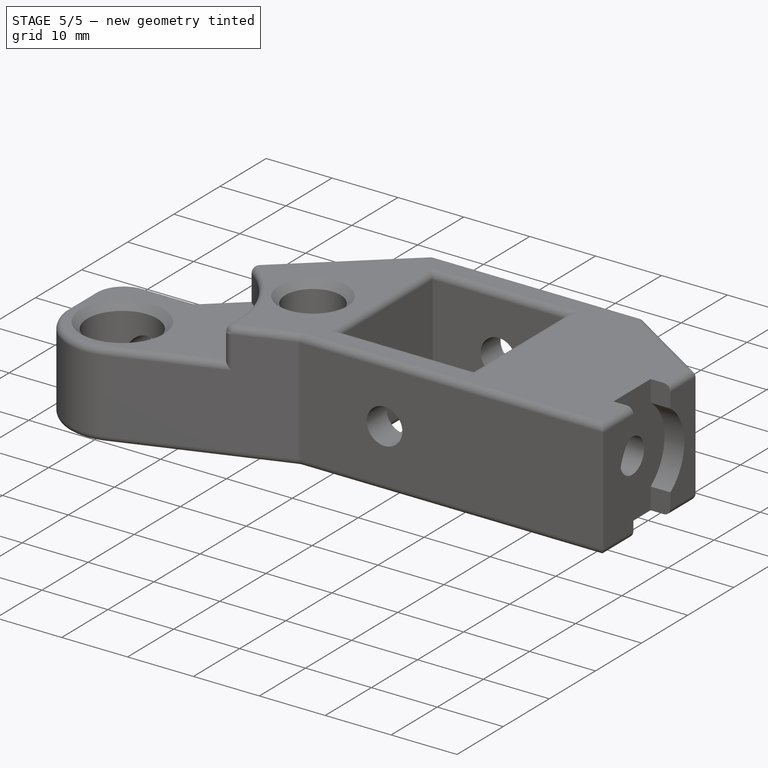
[diagram: stage 5 of 5 — iso view after this stage's code; geometry added in this stage tinted green]
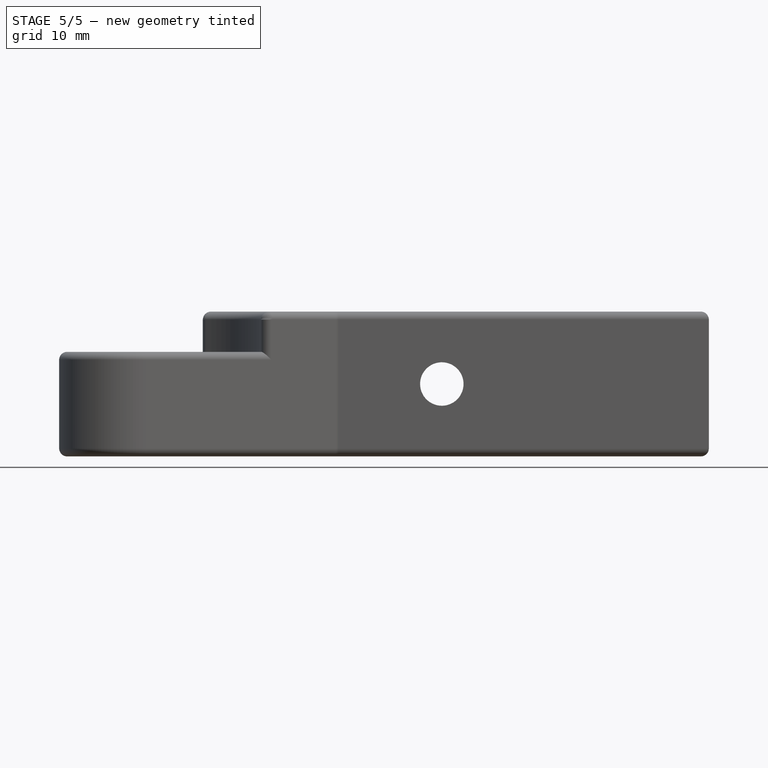
[diagram: stage 5 of 5 — front view after this stage's code; geometry added in this stage tinted green]
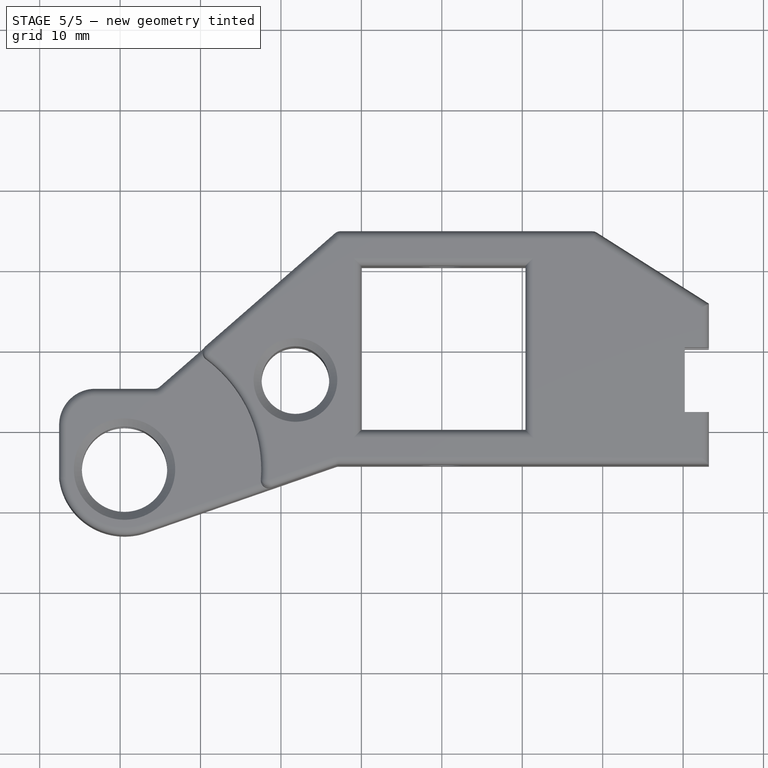
[diagram: stage 5 of 5 — top view after this stage's code; geometry added in this stage tinted green]
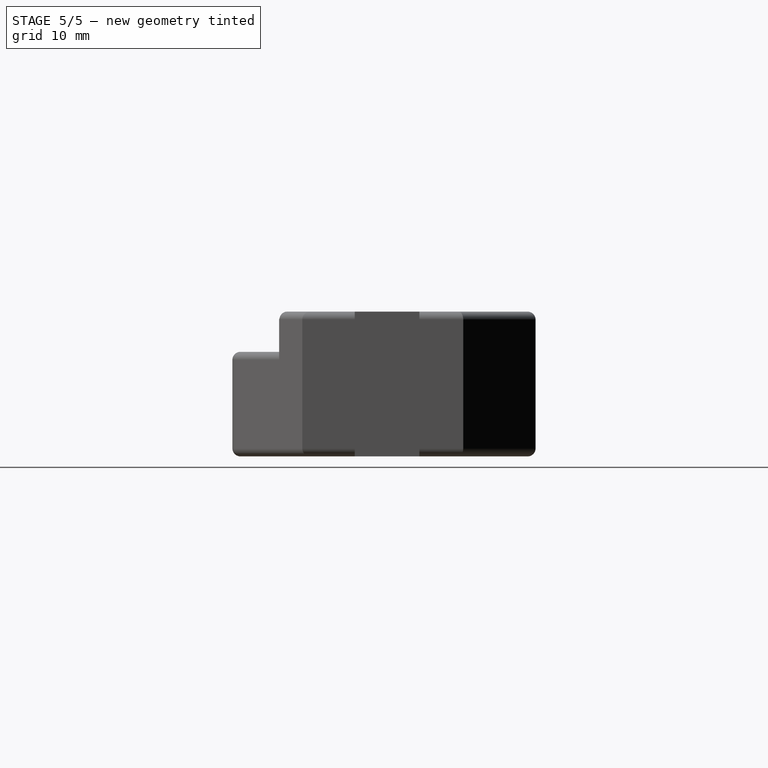
[diagram: stage 5 of 5 — right view after this stage's code; geometry added in this stage tinted green]
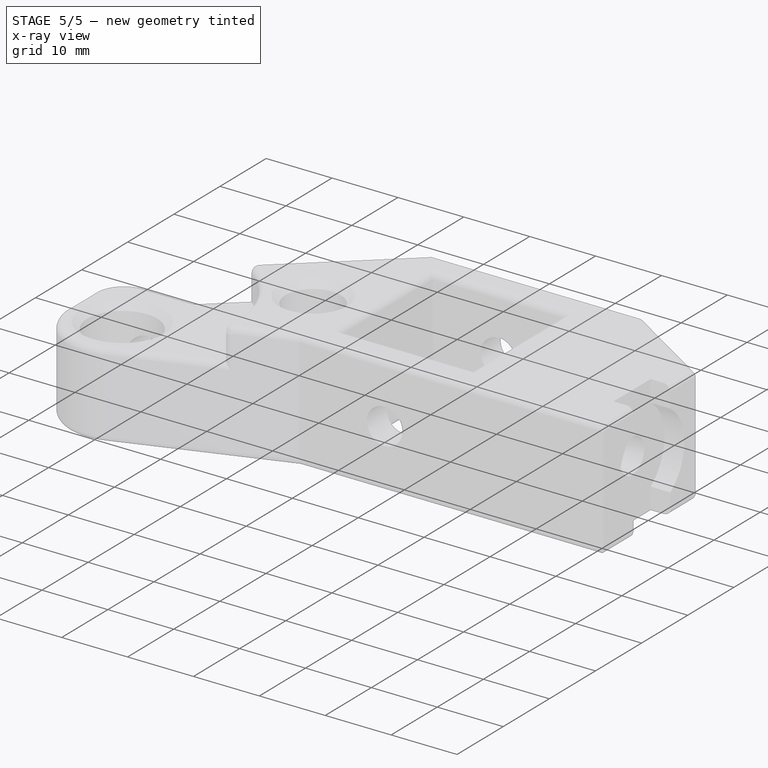
[diagram: stage 5 of 5 — x-ray composite at the iso view; earlier geometry ghosted, this stage's added geometry solid]
FEATURE [PartDesign::Fillet] Fillet004
  Base = -> Fillet003 [Edge136,Edge137]
  Radius = 1
FEATURE [Sketcher::SketchObject] Sketch023
  ExternalGeometry = -> [Fillet004]
  Placement = pos=(0,5.2,0) rot=(0,0.707107,0.707107;3.14159rad)
  Support = -> Fillet004 [Face9]
  sketch-geometry (2):
    g0: ArcOfCircle CenterX=29.45 CenterY=9 CenterZ=0 NormalX=0 NormalY=0 NormalZ=1 Radius=2.6 StartAngle=0 EndAngle=3.14159
    g1: LineSegment StartX=26.85 StartY=9 StartZ=0 EndX=32.05 EndY=9 EndZ=0
  constraints (5):
    c: Coincident(g0,g-3)
    c: Coincident(g0,g-3)
    c: Coincident(g0,g-3)
    c: Coincident(g1,g0)
    c: Coincident(g1,g-3)
FEATURE [PartDesign::Pad] Pad002
  Length = 10
  Length2 = 100
  Reversed = true
  Sketch = -> Sketch023
  Type = 0
FEATURE [Sketcher::SketchObject] Sketch024
  ExternalGeometry = -> [Pad002]
  Placement = pos=(0,0,13) rot=(0,0,1;0rad)
  Support = -> Pad002 [Face7]
  sketch-geometry (1):
    g0: Circle CenterX=-29.45 CenterY=-4.8 CenterZ=0 NormalX=0 NormalY=0 NormalZ=1 Radius=5.3
  constraints (2):
    c: Coincident(g0,g-3)
    c: Equal(g0,g-3)
FEATURE [PartDesign::Pocket] Pocket005
  Length = 5
  Sketch = -> Sketch024
  Type = 1
FEATURE [PartDesign::Chamfer] Chamfer001
  Base = -> Pocket005 [Edge68]
  Size = 1
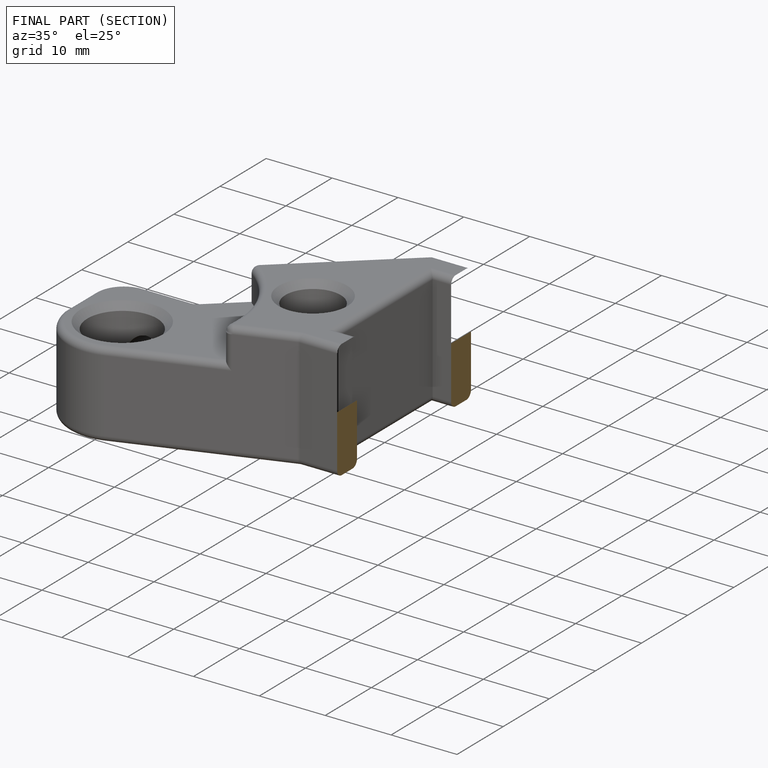
[diagram: finished part — half-section view (interior)]
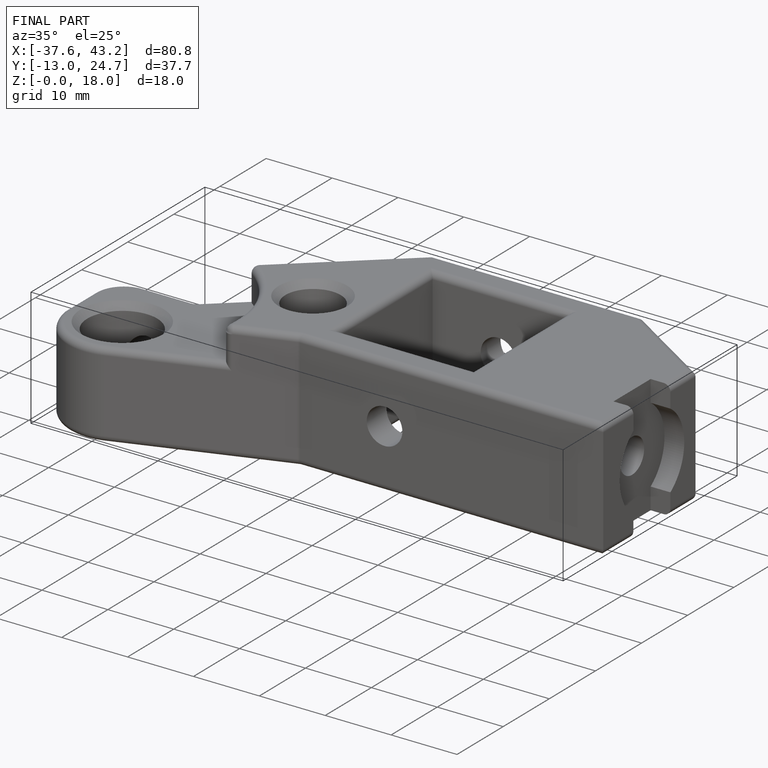
[diagram: finished part — iso view with bounding-box wireframe]
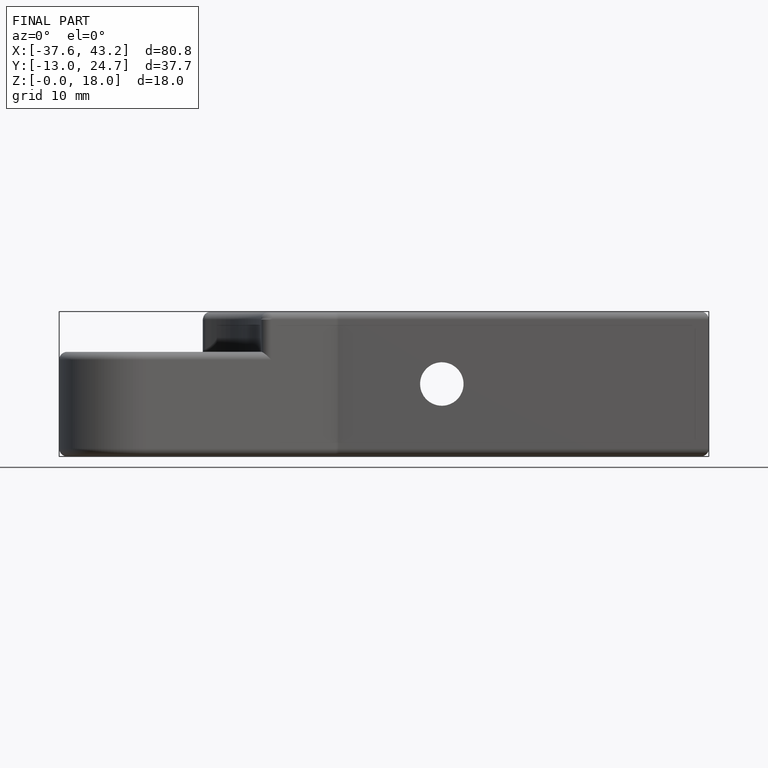
[diagram: finished part — front view with bounding-box wireframe]
